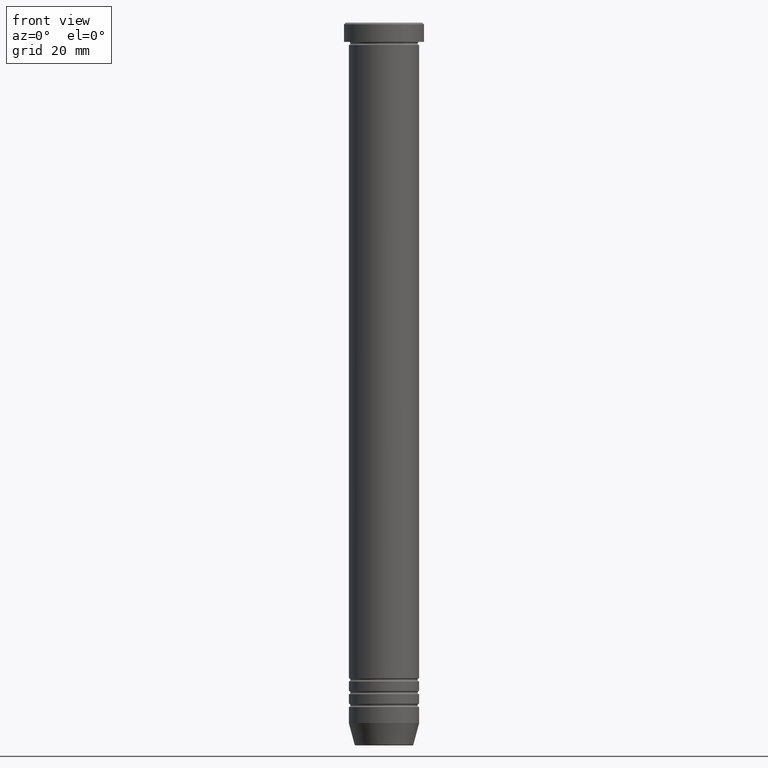
[diagram: clean part render]
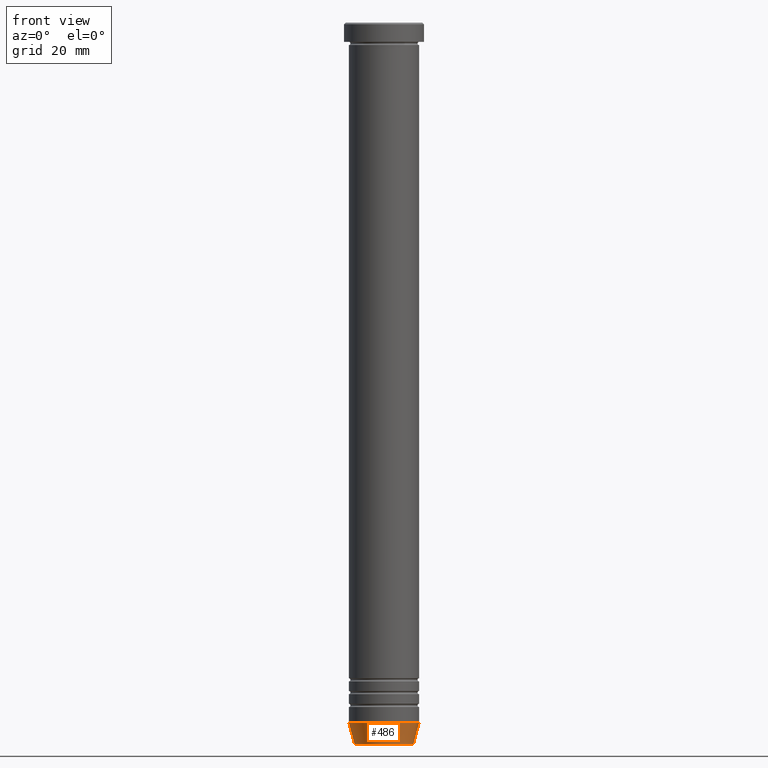
[diagram: same view with one face highlighted and labeled with its STEP entity id]
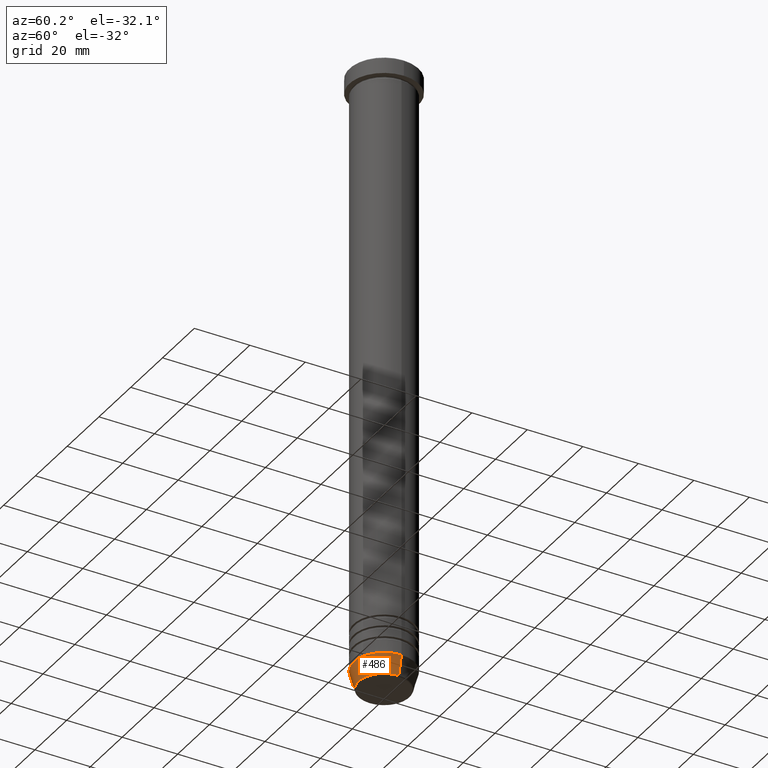
[diagram: same view with one face highlighted and labeled with its STEP entity id]
A machine part, front view. The second image highlights one B-rep face of the part: STEP entity #486.
A second angle (auxiliary view) of the same face is appended — the face is thin or edge-on in the first view.
In plain terms, the highlighted conical surface has half-angle 15 deg.
Its self-contained STEP definition (entity closure, byte-faithful):
#30 = EDGE_CURVE ( 'NONE', #889, #613, #636, .T. ) ;
#45 = DIRECTION ( 'NONE',  ( 1.000000000000000000, 0.000000000000000000, 0.000000000000000000 ) ) ;
#91 = ORIENTED_EDGE ( 'NONE', *, *, #650, .T. ) ;
#123 = CIRCLE ( 'NONE', #855, 11.00000000000000178 ) ;
#139 = CARTESIAN_POINT ( 'NONE',  ( 9.223655072137194821, 0.000000000000000000, -225.6294095225512137 ) ) ;
#182 = EDGE_LOOP ( 'NONE', ( #321, #789, #91, #203 ) ) ;
#203 = ORIENTED_EDGE ( 'NONE', *, *, #456, .F. ) ;
#223 = DIRECTION ( 'NONE',  ( -0.000000000000000000, -0.000000000000000000, 1.000000000000000000 ) ) ;
#231 = AXIS2_PLACEMENT_3D ( 'NONE', #760, #223, #851 ) ;
#234 = VERTEX_POINT ( 'NONE', #976 ) ;
#307 = CARTESIAN_POINT ( 'NONE',  ( -11.00000000000000178, 1.347111479062088602E-15, -218.9999999999999716 ) ) ;
#321 = ORIENTED_EDGE ( 'NONE', *, *, #30, .F. ) ;
#326 = CIRCLE ( 'NONE', #231, 9.223655072137194821 ) ;
#343 = VECTOR ( 'NONE', #529, 1000.000000000000114 ) ;
#394 = FACE_OUTER_BOUND ( 'NONE', #182, .T. ) ;
#456 = EDGE_CURVE ( 'NONE', #613, #234, #123, .T. ) ;
#458 = VECTOR ( 'NONE', #519, 1000.000000000000114 ) ;
#486 = ADVANCED_FACE ( 'NONE', ( #394 ), #1140, .T. ) ;
#519 = DIRECTION ( 'NONE',  ( 0.2588190451025206840, 0.000000000000000000, 0.9659258262890683122 ) ) ;
#527 = AXIS2_PLACEMENT_3D ( 'NONE', #578, #948, #45 ) ;
#528 = EDGE_CURVE ( 'NONE', #889, #1010, #326, .T. ) ;
#529 = DIRECTION ( 'NONE',  ( -0.2588190451025206840, 3.169619151431763092E-17, 0.9659258262890683122 ) ) ;
#578 = CARTESIAN_POINT ( 'NONE',  ( 0.000000000000000000, 0.000000000000000000, -225.9999999999999716 ) ) ;
#581 = DIRECTION ( 'NONE',  ( 1.000000000000000000, 0.000000000000000000, 0.000000000000000000 ) ) ;
#613 = VERTEX_POINT ( 'NONE', #307 ) ;
#636 = LINE ( 'NONE', #1026, #343 ) ;
#650 = EDGE_CURVE ( 'NONE', #1010, #234, #1069, .T. ) ;
#760 = CARTESIAN_POINT ( 'NONE',  ( 0.000000000000000000, 0.000000000000000000, -225.6294095225512137 ) ) ;
#789 = ORIENTED_EDGE ( 'NONE', *, *, #528, .T. ) ;
#851 = DIRECTION ( 'NONE',  ( -1.000000000000000000, 0.000000000000000000, 0.000000000000000000 ) ) ;
#855 = AXIS2_PLACEMENT_3D ( 'NONE', #1111, #936, #581 ) ;
#889 = VERTEX_POINT ( 'NONE', #1102 ) ;
#936 = DIRECTION ( 'NONE',  ( -0.000000000000000000, -0.000000000000000000, 1.000000000000000000 ) ) ;
#948 = DIRECTION ( 'NONE',  ( -0.000000000000000000, -0.000000000000000000, 1.000000000000000000 ) ) ;
#976 = CARTESIAN_POINT ( 'NONE',  ( 11.00000000000000178, 0.000000000000000000, -218.9999999999999716 ) ) ;
#1010 = VERTEX_POINT ( 'NONE', #139 ) ;
#1026 = CARTESIAN_POINT ( 'NONE',  ( -9.124355652982140796, 1.117411294470663595E-15, -225.9999999999999716 ) ) ;
#1060 = CARTESIAN_POINT ( 'NONE',  ( 9.124355652982140796, 0.000000000000000000, -225.9999999999999716 ) ) ;
#1069 = LINE ( 'NONE', #1060, #458 ) ;
#1102 = CARTESIAN_POINT ( 'NONE',  ( -9.223655072137194821, 1.238341722557647596E-15, -225.6294095225512137 ) ) ;
#1111 = CARTESIAN_POINT ( 'NONE',  ( 0.000000000000000000, 0.000000000000000000, -218.9999999999999716 ) ) ;
#1140 = CONICAL_SURFACE ( 'NONE', #527, 9.124355652982140796, 0.2617993877991493523 ) ;